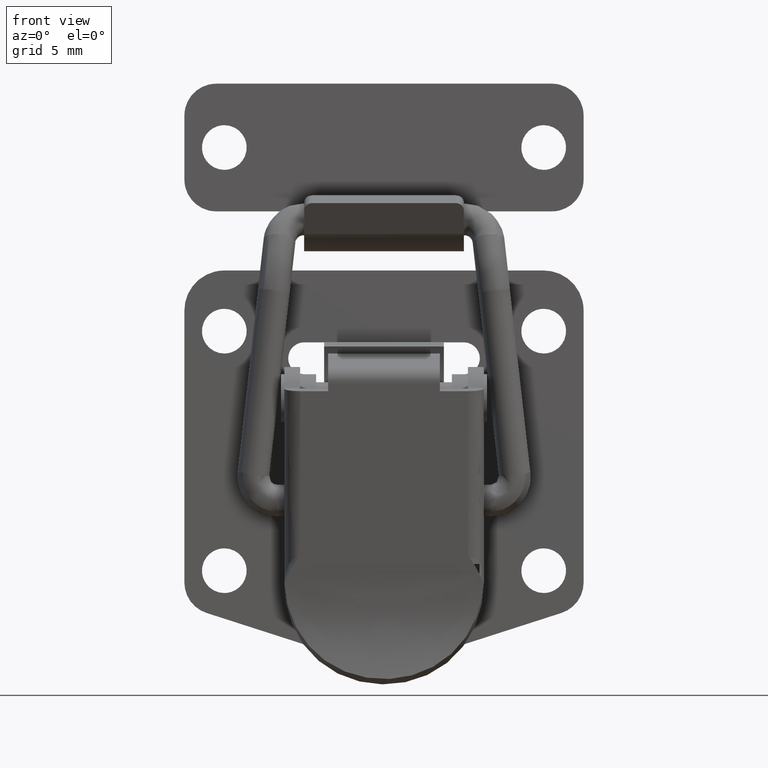
[diagram: clean part render]
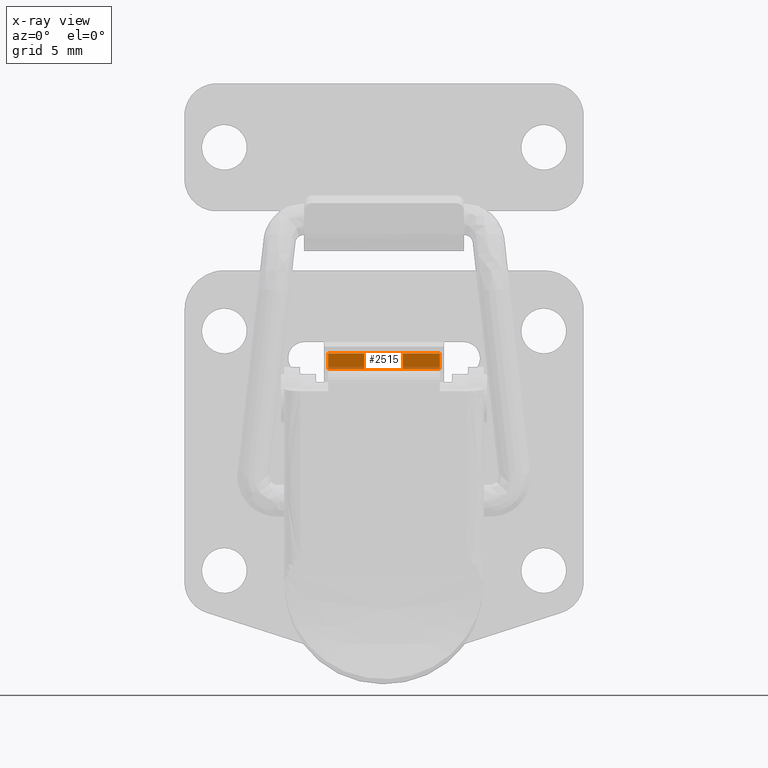
[diagram: x-ray — body ghosted, one internal face saturated and labeled with its STEP entity id]
A machine part, front view, then the same camera in x-ray: the body is ghosted and one INTERNAL B-rep face — a face not visible from any outside direction — is saturated and labeled: STEP entity #2515.
In plain terms, the highlighted face is a freeform B-spline surface patch.
Its self-contained STEP definition (entity closure, byte-faithful):
#2368=CARTESIAN_POINT('',(-0.229055025752640,3.499999999999950,-8.394769841155361));
#2369=VERTEX_POINT('',#2368);
#2375=CARTESIAN_POINT('',(-0.069394216357749,3.499999999999950,-9.379568447002979));
#2376=VERTEX_POINT('',#2375);
#2377=CARTESIAN_POINT('',(-0.229055025752640,3.499999999999950,-8.394769841155361));
#2378=CARTESIAN_POINT('',(-0.069394216357749,3.499999999999950,-9.379568447002979));
#2379=QUASI_UNIFORM_CURVE('',1,(#2377,#2378),.UNSPECIFIED.,.F.,.U.);
#2380=EDGE_CURVE('',#2369,#2376,#2379,.T.);
#2418=CARTESIAN_POINT('',(-0.069394216357749,-3.499999999999950,-9.379568447002979));
#2419=VERTEX_POINT('',#2418);
#2425=CARTESIAN_POINT('',(-0.229055025752640,-3.499999999999950,-8.394769841155361));
#2426=VERTEX_POINT('',#2425);
#2427=CARTESIAN_POINT('',(-0.229055025752640,-3.499999999999950,-8.394769841155361));
#2428=CARTESIAN_POINT('',(-0.069394216357749,-3.499999999999950,-9.379568447002979));
#2429=QUASI_UNIFORM_CURVE('',1,(#2427,#2428),.UNSPECIFIED.,.F.,.U.);
#2430=EDGE_CURVE('',#2426,#2419,#2429,.T.);
#2490=CARTESIAN_POINT('',(-0.069394216357749,-3.499999999999950,-9.379568447002979));
#2491=CARTESIAN_POINT('',(-0.069394216357749,3.499999999999950,-9.379568447002979));
#2492=QUASI_UNIFORM_CURVE('',1,(#2490,#2491),.UNSPECIFIED.,.F.,.U.);
#2493=EDGE_CURVE('',#2419,#2376,#2492,.T.);
#2500=CARTESIAN_POINT('',(-0.237030109995987,-3.849649986432587,-8.345578985402270));
#2501=CARTESIAN_POINT('',(-0.061419213480698,-3.849649986432587,-9.428758800883289));
#2502=CARTESIAN_POINT('',(-0.237030109995987,3.849650174187218,-8.345578985402270));
#2503=CARTESIAN_POINT('',(-0.061419213480698,3.849650174187218,-9.428758800883289));
#2504=B_SPLINE_SURFACE_WITH_KNOTS('',1,1,((#2500,#2502),(#2501,#2503)),.UNSPECIFIED.,.F.,.F.,.U.,(2,2),(2,2),(0.041708193380013,0.958291381936893),(0.0,7.699300160619805),.UNSPECIFIED.);
#2505=ORIENTED_EDGE('',*,*,#2380,.F.);
#2506=CARTESIAN_POINT('',(-0.229055025752640,-3.499999999999950,-8.394769841155361));
#2507=CARTESIAN_POINT('',(-0.229055025752640,3.499999999999950,-8.394769841155361));
#2508=QUASI_UNIFORM_CURVE('',1,(#2506,#2507),.UNSPECIFIED.,.F.,.U.);
#2509=EDGE_CURVE('',#2426,#2369,#2508,.T.);
#2510=ORIENTED_EDGE('',*,*,#2509,.F.);
#2511=ORIENTED_EDGE('',*,*,#2430,.T.);
#2512=ORIENTED_EDGE('',*,*,#2493,.T.);
#2513=EDGE_LOOP('',(#2505,#2510,#2511,#2512));
#2514=FACE_OUTER_BOUND('',#2513,.T.);
#2515=ADVANCED_FACE('',(#2514),#2504,.T.);